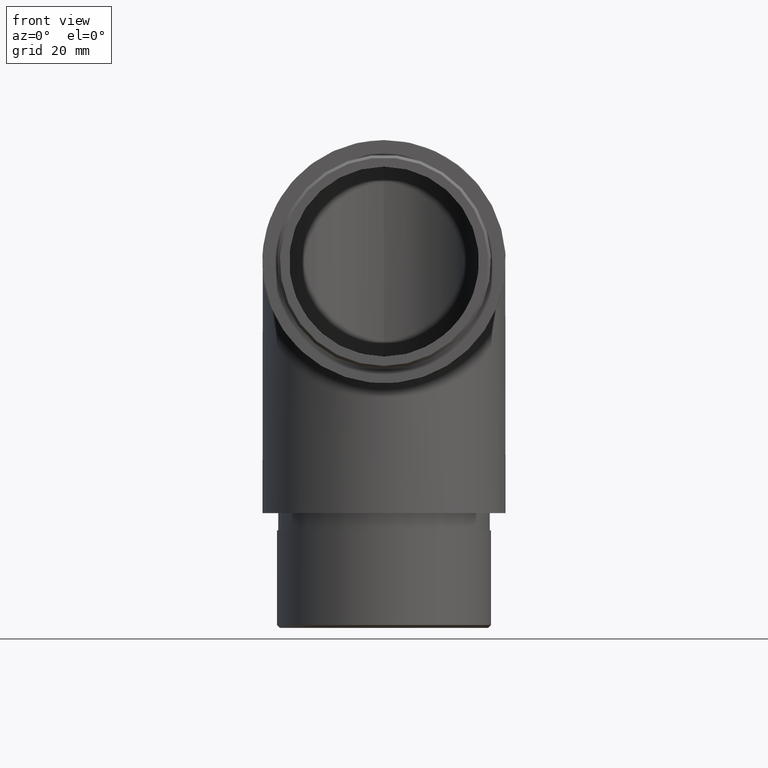
[diagram: clean part render]
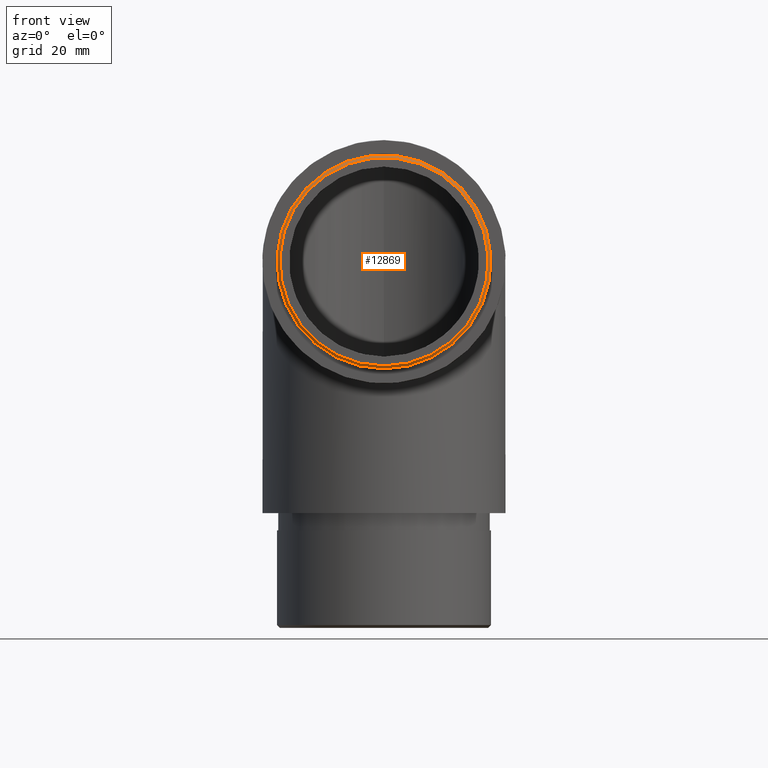
[diagram: same view with one face highlighted and labeled with its STEP entity id]
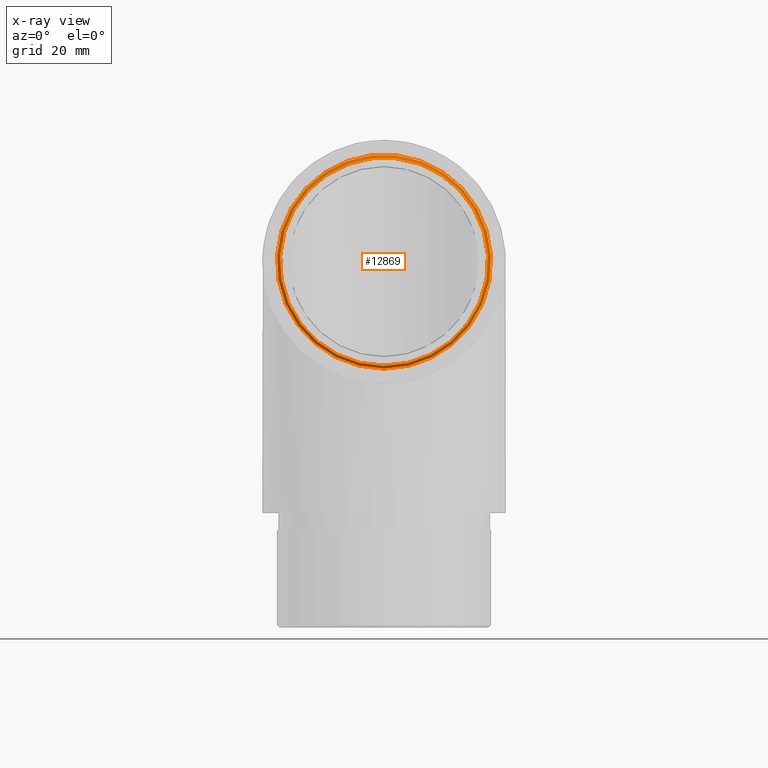
[diagram: x-ray of the same camera — body ghosted, the highlighted face saturated]
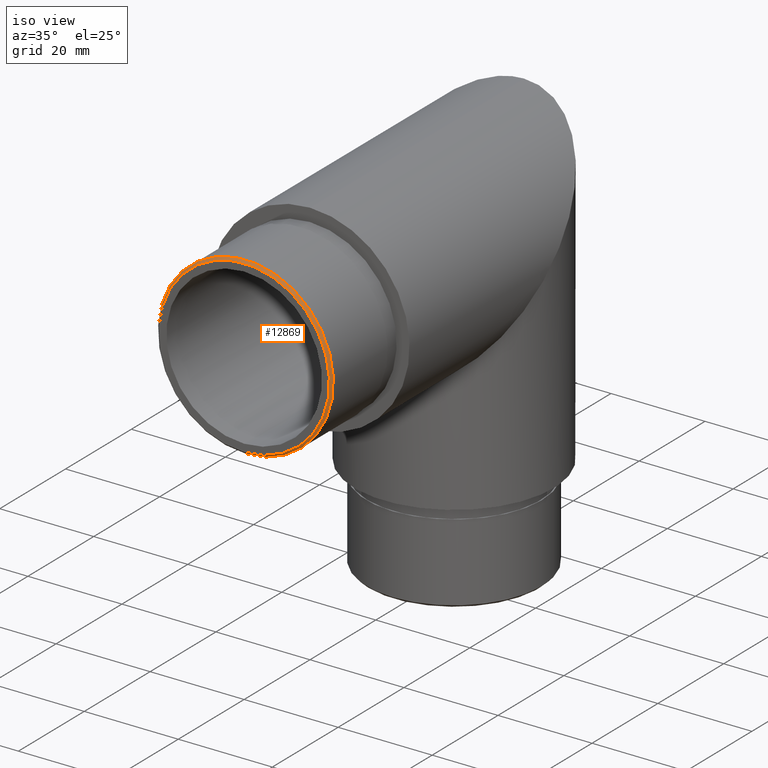
[diagram: same view with one face highlighted and labeled with its STEP entity id]
A machine part, front view. The second image highlights one B-rep face of the part: STEP entity #12869.
The next image is the same camera in x-ray: the body ghosted, the highlighted face saturated — about 0% of this face is hidden behind the body in this view.
A second angle (iso view) of the same face is appended — the face is thin or edge-on in the first view.
In plain terms, the highlighted conical surface has half-angle 45 deg.
Its self-contained STEP definition (entity closure, byte-faithful):
#543 = DIRECTION ( 'NONE',  ( 0.0000000000000000000, 0.0000000000000000000, -1.000000000000000000 ) ) ;
#808 = AXIS2_PLACEMENT_3D ( 'NONE', #8643, #5684, #12540 ) ;
#2246 = CONICAL_SURFACE ( 'NONE', #808, 18.15000000000002700, 0.7853981633974345100 ) ;
#2564 = VERTEX_POINT ( 'NONE', #5602 ) ;
#2720 = CARTESIAN_POINT ( 'NONE',  ( 0.0000000000000000000, -20.00000000000000000, -18.15000000000002700 ) ) ;
#3854 = DIRECTION ( 'NONE',  ( 0.0000000000000000000, 1.000000000000000000, 0.0000000000000000000 ) ) ;
#4583 = AXIS2_PLACEMENT_3D ( 'NONE', #11583, #12656, #543 ) ;
#4643 = CIRCLE ( 'NONE', #12381, 18.64999999999999900 ) ;
#4883 = CARTESIAN_POINT ( 'NONE',  ( 0.0000000000000000000, -19.50000000000001400, 0.0000000000000000000 ) ) ;
#5602 = CARTESIAN_POINT ( 'NONE',  ( 0.0000000000000000000, -19.50000000000001400, -18.64999999999999900 ) ) ;
#5684 = DIRECTION ( 'NONE',  ( 0.0000000000000000000, 1.000000000000000000, 0.0000000000000000000 ) ) ;
#5688 = FACE_OUTER_BOUND ( 'NONE', #5823, .T. ) ;
#5792 = EDGE_CURVE ( 'NONE', #2564, #2564, #4643, .T. ) ;
#5823 = EDGE_LOOP ( 'NONE', ( #12777 ) ) ;
#6238 = EDGE_LOOP ( 'NONE', ( #11386 ) ) ;
#6894 = VERTEX_POINT ( 'NONE', #2720 ) ;
#8643 = CARTESIAN_POINT ( 'NONE',  ( 0.0000000000000000000, -20.00000000000000000, 0.0000000000000000000 ) ) ;
#8958 = DIRECTION ( 'NONE',  ( 0.0000000000000000000, 0.0000000000000000000, -1.000000000000000000 ) ) ;
#9417 = EDGE_CURVE ( 'NONE', #6894, #6894, #11144, .T. ) ;
#11144 = CIRCLE ( 'NONE', #4583, 18.15000000000002700 ) ;
#11386 = ORIENTED_EDGE ( 'NONE', *, *, #9417, .F. ) ;
#11583 = CARTESIAN_POINT ( 'NONE',  ( 0.0000000000000000000, -20.00000000000000000, 0.0000000000000000000 ) ) ;
#12029 = FACE_BOUND ( 'NONE', #6238, .T. ) ;
#12381 = AXIS2_PLACEMENT_3D ( 'NONE', #4883, #3854, #8958 ) ;
#12540 = DIRECTION ( 'NONE',  ( 0.0000000000000000000, 0.0000000000000000000, 1.000000000000000000 ) ) ;
#12656 = DIRECTION ( 'NONE',  ( 0.0000000000000000000, -1.000000000000000000, 0.0000000000000000000 ) ) ;
#12777 = ORIENTED_EDGE ( 'NONE', *, *, #5792, .F. ) ;
#12869 = ADVANCED_FACE ( 'NONE', ( #5688, #12029 ), #2246, .T. ) ;